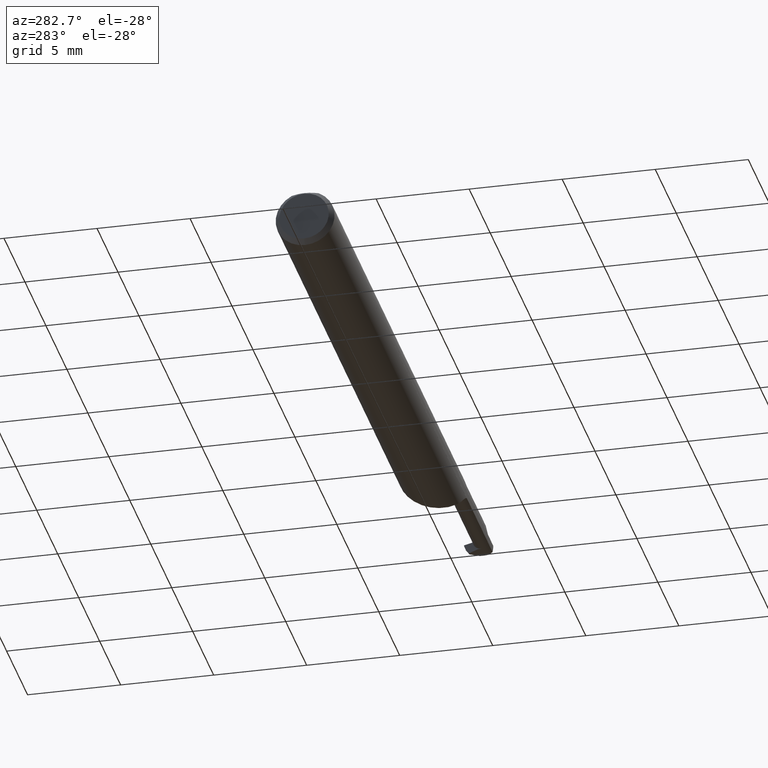
[diagram: clean part render]
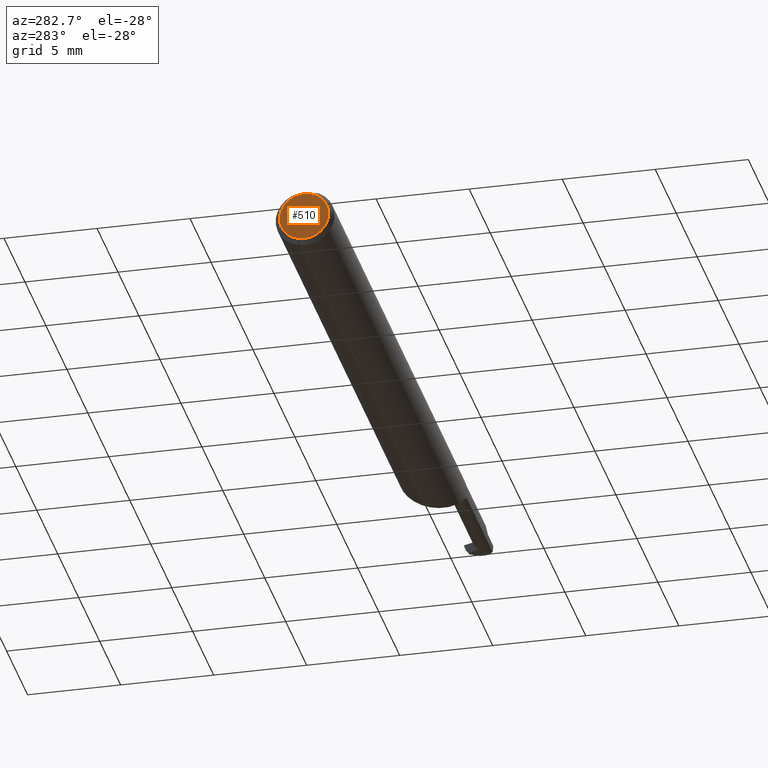
[diagram: same view with one face highlighted and labeled with its STEP entity id]
A machine part, auxiliary view. The second image highlights one B-rep face of the part: STEP entity #510.
In plain terms, the highlighted planar face has unit normal (1, 0, 0).
Its self-contained STEP definition (entity closure, byte-faithful):
#31 = VERTEX_POINT ( 'NONE', #929 ) ;
#45 = CIRCLE ( 'NONE', #242, 0.05235000000000019499 ) ;
#167 = CIRCLE ( 'NONE', #363, 0.05235000000000019499 ) ;
#184 = ORIENTED_EDGE ( 'NONE', *, *, #776, .T. ) ;
#242 = AXIS2_PLACEMENT_3D ( 'NONE', #692, #1022, #385 ) ;
#253 = DIRECTION ( 'NONE',  ( 0.000000000000000000, 0.000000000000000000, -1.000000000000000000 ) ) ;
#288 = DIRECTION ( 'NONE',  ( -1.000000000000000000, -0.000000000000000000, -0.000000000000000000 ) ) ;
#337 = EDGE_CURVE ( 'NONE', #1003, #31, #167, .T. ) ;
#340 = FACE_OUTER_BOUND ( 'NONE', #834, .T. ) ;
#363 = AXIS2_PLACEMENT_3D ( 'NONE', #682, #288, #580 ) ;
#384 = ORIENTED_EDGE ( 'NONE', *, *, #337, .T. ) ;
#385 = DIRECTION ( 'NONE',  ( 0.000000000000000000, 0.000000000000000000, -1.000000000000000000 ) ) ;
#420 = PLANE ( 'NONE',  #583 ) ;
#510 = ADVANCED_FACE ( 'NONE', ( #340 ), #420, .F. ) ;
#562 = CARTESIAN_POINT ( 'NONE',  ( 0.000000000000000000, 7.023349393110082209E-18, 0.05235000000000019499 ) ) ;
#580 = DIRECTION ( 'NONE',  ( 0.000000000000000000, 0.000000000000000000, -1.000000000000000000 ) ) ;
#583 = AXIS2_PLACEMENT_3D ( 'NONE', #875, #734, #253 ) ;
#682 = CARTESIAN_POINT ( 'NONE',  ( 0.000000000000000000, 0.000000000000000000, 0.000000000000000000 ) ) ;
#692 = CARTESIAN_POINT ( 'NONE',  ( 0.000000000000000000, 0.000000000000000000, 0.000000000000000000 ) ) ;
#734 = DIRECTION ( 'NONE',  ( 1.000000000000000000, 0.000000000000000000, 0.000000000000000000 ) ) ;
#776 = EDGE_CURVE ( 'NONE', #31, #1003, #45, .T. ) ;
#834 = EDGE_LOOP ( 'NONE', ( #184, #384 ) ) ;
#875 = CARTESIAN_POINT ( 'NONE',  ( 0.000000000000000000, 0.000000000000000000, 0.000000000000000000 ) ) ;
#929 = CARTESIAN_POINT ( 'NONE',  ( 0.000000000000000000, 0.000000000000000000, -0.05235000000000019499 ) ) ;
#1003 = VERTEX_POINT ( 'NONE', #562 ) ;
#1022 = DIRECTION ( 'NONE',  ( -1.000000000000000000, -0.000000000000000000, -0.000000000000000000 ) ) ;